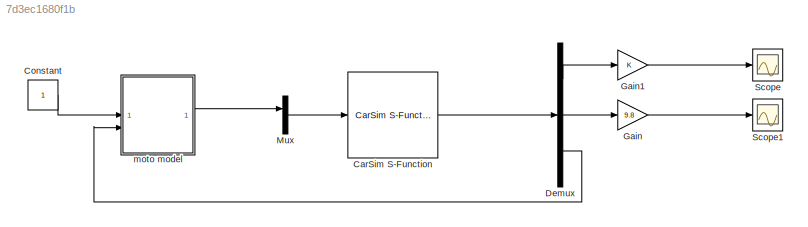
MODEL slx_7d3ec1680f1b
KIND model
CONFIG AbsTol = auto
CONFIG EnableMultiTasking = off
CONFIG FixedStep = auto
CONFIG MaxStep = auto
CONFIG MinStep = auto
CONFIG RelTol = 1e-3
CONFIG SampleTimeConstraint = Unconstrained
CONFIG SolverName = VariableStepAuto
CONFIG StartTime = 0.0
CONFIG StopTime = 50
BLOCK [Reference] CarSim S-Function  REF=Solver_SF/CarSim S-Function
  Priority = 1
  SourceBlock = Solver_SF/CarSim S-Function
  SourceProductName = CarSim S-Function
  SourceType = Vehicle math model library
BLOCK [Constant] Constant
BLOCK [Demux] Demux
  Outputs = 3
BLOCK [Gain] Gain
  Gain = 9.8
BLOCK [Gain] Gain1
BLOCK [Mux] Mux
  DisplayOption = bar
  Inputs = 1
BLOCK [Scope] Scope
  Floating = off
  NumInputPorts = 1
  ScopeSpecificationString = Simulink.scopes.TimeScopeBlockCfg('CurrentConfiguration', extmgr.ConfigurationSet(extmgr.Configuration('Core','General UI',true),extmgr.Configuration('Core','Source UI',true),extmgr.Configuration('Sources','WiredSimulink',true),extmgr.Configuration('Visuals','Time Domain',true,'SerializedDisplays',{struct('MinYLimReal','-46.18931','MaxYLimReal','425.70351','YLabelReal','','MinYLimMag','0.00000','M...<+1424ch>
BLOCK [Scope] Scope1
  Floating = off
  NumInputPorts = 1
  ScopeSpecificationString = Simulink.scopes.TimeScopeBlockCfg('CurrentConfiguration', extmgr.ConfigurationSet(extmgr.Configuration('Core','General UI',true),extmgr.Configuration('Core','Source UI',true),extmgr.Configuration('Sources','WiredSimulink',true,'DataLoggingVariableName','ScopeData1'),extmgr.Configuration('Visuals','Time Domain',true,'SerializedDisplays',{struct('MinYLimReal','-110350.45835','MaxYLimReal','1066654.1...<+1494ch>
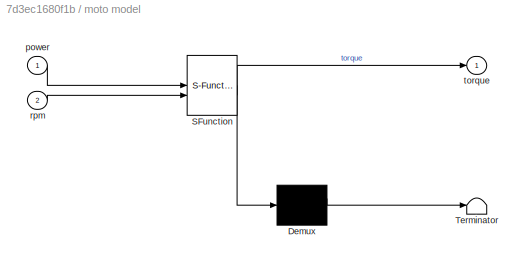
BLOCK [SubSystem] moto model
  ErrorFcn = Stateflow.Translate.translate
  PermitHierarchicalResolution = ExplicitOnly
  SFBlockType = MATLAB Function
  TreatAsAtomicUnit = on
BLOCK [Demux] moto model/ Demux 
  Outputs = 1
BLOCK [S-Function] moto model/ SFunction 
  EnableBusSupport = on
  FunctionName = sf_sfun
  PortCounts = [2 2]
  SFcnIsStateOwnerBlock = off
  SFunctionDeploymentMode = off
  Tag = Stateflow S-Function 2
BLOCK [Terminator] moto model/ Terminator 
BLOCK [Inport] moto model/power
BLOCK [Inport] moto model/rpm
  Port = 2
BLOCK [Outport] moto model/torque
LINE CarSim S-Function:1 -> Demux:1
LINE Constant:1 -> moto model:1
LINE Demux:1 -> Gain1:1
LINE Demux:2 -> Gain:1
LINE Demux:3 -> moto model:2
LINE Gain1:1 -> Scope:1
LINE Gain:1 -> Scope1:1
LINE Mux:1 -> CarSim S-Function:1
LINE moto model:1 -> Mux:1
CHART moto model states=1 transitions=1
  STATE_LABEL 'eML_blk_kernel()'
  STATE_LABEL 'SCRIPT:\nfunction torque = fcn(power,rpm)\nTmax=380*power;\nif(rpm<=4523)\n    torque=Tmax;\nelse\n    torque=Tmax*4523/rpm;\nend\nend'
CHART  states=0 transitions=0
